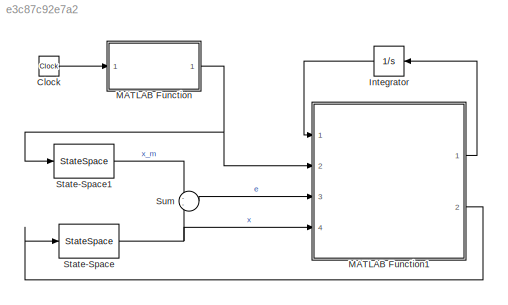
MODEL slx_e3c87c92e7a2
KIND model
CONFIG AbsTol = auto
CONFIG EnableMultiTasking = off
CONFIG FixedStep = auto
CONFIG MaxStep = auto
CONFIG MinStep = auto
CONFIG RelTol = 1e-3
CONFIG SampleTimeConstraint = Unconstrained
CONFIG SolverName = VariableStepAuto
CONFIG StartTime = 0.0
CONFIG StopTime = 10.0
BLOCK [Clock] Clock
BLOCK [Integrator] Integrator
  NameLocation = top
  Ports = [1, 1]
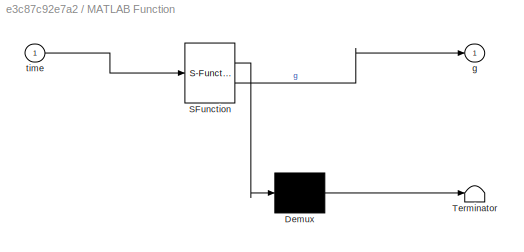
BLOCK [SubSystem] MATLAB Function
  ErrorFcn = Stateflow.Translate.translate
  PermitHierarchicalResolution = ExplicitOnly
  Ports = [1, 1]
  RequestExecContextInheritance = off
  SFBlockType = MATLAB Function
  TreatAsAtomicUnit = on
BLOCK [Demux] MATLAB Function/ Demux 
  Outputs = 1
  Ports = [1, 1]
BLOCK [S-Function] MATLAB Function/ SFunction 
  EnableBusSupport = off
  FunctionName = sf_sfun
  PortCounts = [1 2]
  Ports = [1, 2]
  SFcnIsStateOwnerBlock = off
  SFunctionDeploymentMode = off
  Tag = Stateflow S-Function 2
BLOCK [Terminator] MATLAB Function/ Terminator 
BLOCK [Outport] MATLAB Function/g
BLOCK [Inport] MATLAB Function/time
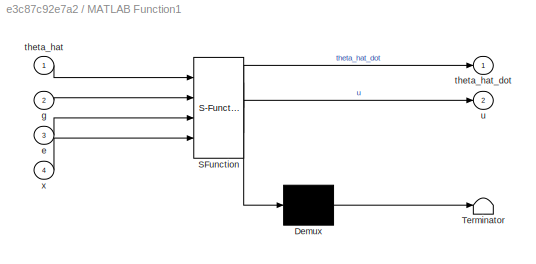
BLOCK [SubSystem] MATLAB Function1
  ErrorFcn = Stateflow.Translate.translate
  PermitHierarchicalResolution = ExplicitOnly
  Ports = [4, 2]
  RequestExecContextInheritance = off
  SFBlockType = MATLAB Function
  TreatAsAtomicUnit = on
BLOCK [Demux] MATLAB Function1/ Demux 
  Outputs = 1
  Ports = [1, 1]
BLOCK [S-Function] MATLAB Function1/ SFunction 
  EnableBusSupport = off
  FunctionName = sf_sfun
  PortCounts = [4 3]
  Ports = [4, 3]
  SFcnIsStateOwnerBlock = off
  SFunctionDeploymentMode = off
  Tag = Stateflow S-Function 1
BLOCK [Terminator] MATLAB Function1/ Terminator 
BLOCK [Inport] MATLAB Function1/e
  Port = 3
BLOCK [Inport] MATLAB Function1/g
  Port = 2
BLOCK [Inport] MATLAB Function1/theta_hat
BLOCK [Outport] MATLAB Function1/theta_hat_dot
BLOCK [Outport] MATLAB Function1/u
  Port = 2
BLOCK [Inport] MATLAB Function1/x
  Port = 4
BLOCK [StateSpace] State-Space
  A = A_m
  B = b_m
  C = C_m
  D = 0
  InitialCondition = 0
  Ports = [1, 1]
BLOCK [StateSpace] State-Space1
  A = A
  B = b
  C = C
  D = 0
  InitialCondition = 0
  Ports = [1, 1]
BLOCK [Sum] Sum
  Inputs = --
  Ports = [2, 1]
LINE Clock:1 -> MATLAB Function:1
LINE Integrator:1 -> MATLAB Function1:1
LINE MATLAB Function1:1 -> Integrator:1
LINE MATLAB Function1:2 -> State-Space:1
NET MATLAB Function:1 -> MATLAB Function1:2, State-Space1:1
LINE State-Space1:1 -> Sum:1
NET State-Space:1 -> MATLAB Function1:4, Sum:2
LINE Sum:1 -> MATLAB Function1:3
note: NET lines group one-source signal fan-out (src -> all destinations, sorted); 1:1 wires keep LINE
CHART MATLAB Function1 states=1 transitions=1
  STATE_LABEL 'eML_blk_kernel()'
  STATE_LABEL 'SCRIPT:\nfunction [theta_hat_dot, u] = fcn(theta_hat, g, e, x)\ntheta_hat_dot = 1;\nu = 1;\n\n'
CHART MATLAB Function states=1 transitions=1
  STATE_LABEL 'eML_blk_kernel()'
  STATE_LABEL 'SCRIPT:\nfunction g = fcn(time)\n\ng = 2*sign(sin(0.4*time)) + 3;'
CHART  states=0 transitions=0
CHART  states=0 transitions=0
